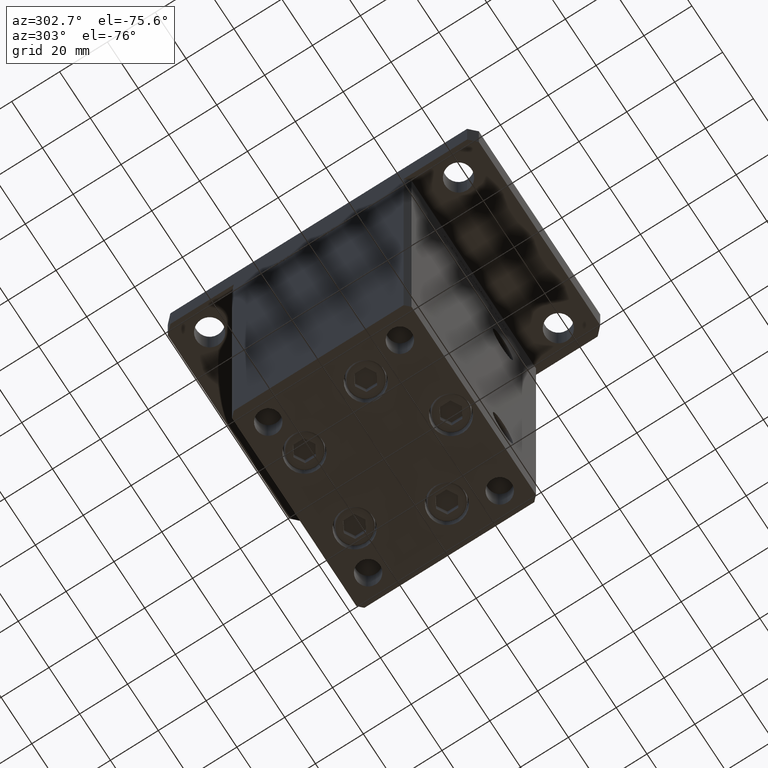
[diagram: clean part render]
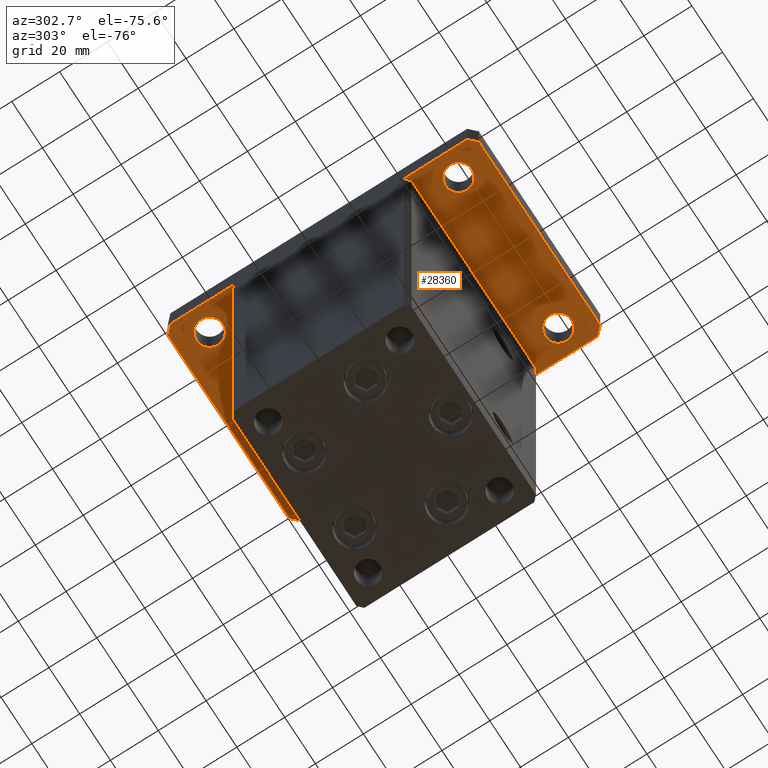
[diagram: same view with one face highlighted and labeled with its STEP entity id]
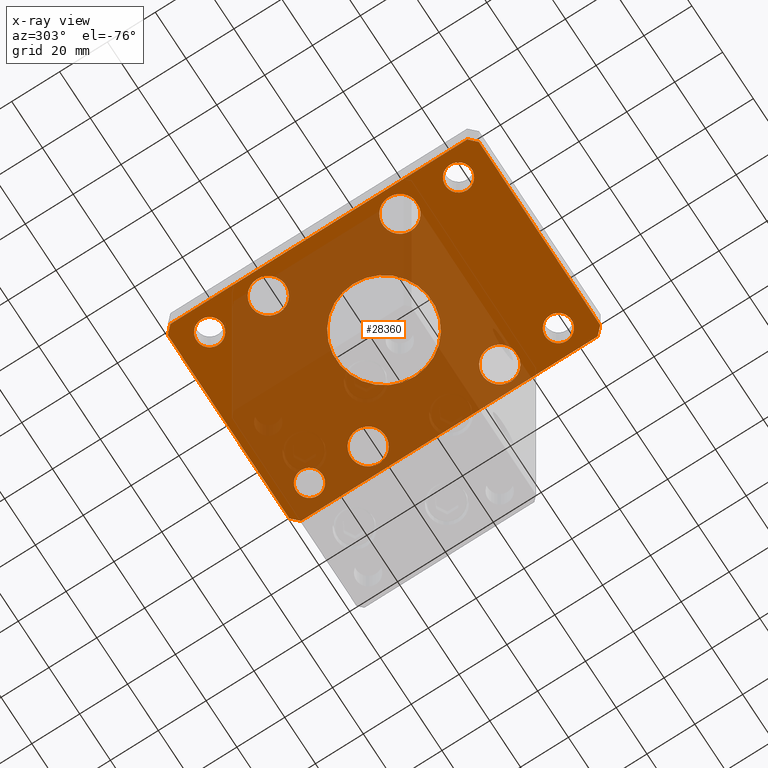
[diagram: x-ray of the same camera — body ghosted, the highlighted face saturated]
A machine part, auxiliary view. The second image highlights one B-rep face of the part: STEP entity #28360.
The next image is the same camera in x-ray: the body ghosted, the highlighted face saturated — about 61% of this face is hidden behind the body in this view.
In plain terms, the highlighted planar face has unit normal (0, 0, 1).
Its self-contained STEP definition (entity closure, byte-faithful):
#165 = EDGE_LOOP ( 'NONE', ( #21853, #30798 ) ) ;
#270 = CARTESIAN_POINT ( 'NONE',  ( 39.75000000000000000, -27.50000000000000000, 0.000000000000000000 ) ) ;
#429 = EDGE_CURVE ( 'NONE', #25460, #5634, #46263, .T. ) ;
#467 = CARTESIAN_POINT ( 'NONE',  ( 32.50000000000000000, -27.50000000000000000, 0.000000000000000000 ) ) ;
#526 = VERTEX_POINT ( 'NONE', #5602 ) ;
#562 = LINE ( 'NONE', #49399, #39294 ) ;
#572 = EDGE_CURVE ( 'NONE', #15214, #49573, #3826, .T. ) ;
#612 = EDGE_CURVE ( 'NONE', #18823, #40445, #2979, .T. ) ;
#733 = EDGE_CURVE ( 'NONE', #5634, #25460, #2085, .T. ) ;
#735 = DIRECTION ( 'NONE',  ( 0.000000000000000000, 0.000000000000000000, 1.000000000000000000 ) ) ;
#1325 = VECTOR ( 'NONE', #2848, 1000.000000000000000 ) ;
#1640 = AXIS2_PLACEMENT_3D ( 'NONE', #51189, #9947, #2096 ) ;
#1709 = ORIENTED_EDGE ( 'NONE', *, *, #21963, .T. ) ;
#2031 = FACE_BOUND ( 'NONE', #13577, .T. ) ;
#2085 = CIRCLE ( 'NONE', #29776, 5.499999999999998224 ) ;
#2096 = DIRECTION ( 'NONE',  ( 1.000000000000000000, 0.000000000000000000, 0.000000000000000000 ) ) ;
#2121 = VECTOR ( 'NONE', #28222, 1000.000000000000000 ) ;
#2164 = CIRCLE ( 'NONE', #27294, 20.00000000000000000 ) ;
#2212 = EDGE_CURVE ( 'NONE', #41423, #32702, #13368, .T. ) ;
#2848 = DIRECTION ( 'NONE',  ( 0.000000000000000000, 1.000000000000000000, 0.000000000000000000 ) ) ;
#2979 = CIRCLE ( 'NONE', #44591, 5.499999999999994671 ) ;
#3056 = ORIENTED_EDGE ( 'NONE', *, *, #42319, .F. ) ;
#3191 = CARTESIAN_POINT ( 'NONE',  ( -39.50000000000003553, 65.00000000000000000, 0.000000000000000000 ) ) ;
#3204 = DIRECTION ( 'NONE',  ( 0.000000000000000000, 0.000000000000000000, 1.000000000000000000 ) ) ;
#3275 = ORIENTED_EDGE ( 'NONE', *, *, #2212, .T. ) ;
#3456 = EDGE_LOOP ( 'NONE', ( #53625, #35612, #23006, #40290, #45476, #10619, #43315, #5190 ) ) ;
#3621 = CARTESIAN_POINT ( 'NONE',  ( 25.25000000000000000, -27.50000000000000000, 0.000000000000000000 ) ) ;
#3826 = CIRCLE ( 'NONE', #26360, 5.499999999999991118 ) ;
#3912 = EDGE_CURVE ( 'NONE', #45371, #46213, #15555, .T. ) ;
#4072 = CARTESIAN_POINT ( 'NONE',  ( -37.99999999999997868, -52.00000000000000711, 0.000000000000000000 ) ) ;
#5190 = ORIENTED_EDGE ( 'NONE', *, *, #32924, .F. ) ;
#5234 = EDGE_LOOP ( 'NONE', ( #14128, #12785 ) ) ;
#5277 = CARTESIAN_POINT ( 'NONE',  ( -20.00000000000000000, 0.000000000000000000, 0.000000000000000000 ) ) ;
#5330 = CARTESIAN_POINT ( 'NONE',  ( -32.49999999999997868, -52.00000000000000711, 0.000000000000000000 ) ) ;
#5379 = VERTEX_POINT ( 'NONE', #53196 ) ;
#5602 = CARTESIAN_POINT ( 'NONE',  ( 42.50000000000000000, 62.00000000000000711, 0.000000000000000000 ) ) ;
#5634 = VERTEX_POINT ( 'NONE', #25957 ) ;
#6268 = VERTEX_POINT ( 'NONE', #46653 ) ;
#6794 = CARTESIAN_POINT ( 'NONE',  ( 20.00000000000000000, 2.449293598294706513E-15, 0.000000000000000000 ) ) ;
#6916 = FACE_BOUND ( 'NONE', #165, .T. ) ;
#7143 = ORIENTED_EDGE ( 'NONE', *, *, #572, .T. ) ;
#7173 = CARTESIAN_POINT ( 'NONE',  ( -42.49999999999999289, -62.00000000000001421, 0.000000000000000000 ) ) ;
#7449 = CARTESIAN_POINT ( 'NONE',  ( 42.50000000000000000, -61.99999999999988631, 0.000000000000000000 ) ) ;
#7674 = ORIENTED_EDGE ( 'NONE', *, *, #34034, .T. ) ;
#7967 = DIRECTION ( 'NONE',  ( 0.000000000000000000, 0.000000000000000000, -1.000000000000000000 ) ) ;
#8515 = DIRECTION ( 'NONE',  ( 1.000000000000000000, 0.000000000000000000, 0.000000000000000000 ) ) ;
#8775 = CARTESIAN_POINT ( 'NONE',  ( 32.50000000000000000, 27.50000000000000000, 0.000000000000000000 ) ) ;
#9886 = AXIS2_PLACEMENT_3D ( 'NONE', #21076, #16736, #24109 ) ;
#9947 = DIRECTION ( 'NONE',  ( 0.000000000000000000, 0.000000000000000000, 1.000000000000000000 ) ) ;
#10154 = FACE_BOUND ( 'NONE', #28139, .T. ) ;
#10491 = EDGE_CURVE ( 'NONE', #32702, #41423, #24873, .T. ) ;
#10619 = ORIENTED_EDGE ( 'NONE', *, *, #37777, .F. ) ;
#10774 = ORIENTED_EDGE ( 'NONE', *, *, #25244, .T. ) ;
#10972 = FACE_OUTER_BOUND ( 'NONE', #3456, .T. ) ;
#10976 = EDGE_CURVE ( 'NONE', #46213, #6268, #52085, .T. ) ;
#11071 = DIRECTION ( 'NONE',  ( 1.000000000000000000, 0.000000000000000000, 0.000000000000000000 ) ) ;
#11612 = VERTEX_POINT ( 'NONE', #23302 ) ;
#11742 = VERTEX_POINT ( 'NONE', #33999 ) ;
#11796 = CIRCLE ( 'NONE', #35182, 7.249999999999999112 ) ;
#12002 = VERTEX_POINT ( 'NONE', #3621 ) ;
#12032 = AXIS2_PLACEMENT_3D ( 'NONE', #52918, #15746, #32269 ) ;
#12491 = AXIS2_PLACEMENT_3D ( 'NONE', #22661, #31055, #22942 ) ;
#12552 = DIRECTION ( 'NONE',  ( 0.000000000000000000, 0.000000000000000000, 1.000000000000000000 ) ) ;
#12759 = CARTESIAN_POINT ( 'NONE',  ( -39.75000000000000000, -27.50000000000000000, 0.000000000000000000 ) ) ;
#12785 = ORIENTED_EDGE ( 'NONE', *, *, #32878, .T. ) ;
#13368 = CIRCLE ( 'NONE', #50619, 7.249999999999999112 ) ;
#13577 = EDGE_LOOP ( 'NONE', ( #29716, #23418 ) ) ;
#13677 = VECTOR ( 'NONE', #36056, 1000.000000000000000 ) ;
#14105 = CARTESIAN_POINT ( 'NONE',  ( 26.99999999999998579, -52.00000000000000711, 0.000000000000000000 ) ) ;
#14128 = ORIENTED_EDGE ( 'NONE', *, *, #44697, .T. ) ;
#14457 = EDGE_LOOP ( 'NONE', ( #3056, #43032 ) ) ;
#14558 = DIRECTION ( 'NONE',  ( 1.000000000000000000, 0.000000000000000000, 0.000000000000000000 ) ) ;
#14674 = EDGE_LOOP ( 'NONE', ( #38011, #1709 ) ) ;
#15214 = VERTEX_POINT ( 'NONE', #27310 ) ;
#15364 = AXIS2_PLACEMENT_3D ( 'NONE', #49999, #37240, #33693 ) ;
#15472 = CIRCLE ( 'NONE', #12032, 5.499999999999994671 ) ;
#15555 = LINE ( 'NONE', #43793, #35109 ) ;
#15674 = CARTESIAN_POINT ( 'NONE',  ( -32.50000000000000000, 52.00000000000000000, 0.000000000000000000 ) ) ;
#15746 = DIRECTION ( 'NONE',  ( 0.000000000000000000, 0.000000000000000000, 1.000000000000000000 ) ) ;
#15806 = EDGE_CURVE ( 'NONE', #43168, #45165, #20720, .T. ) ;
#15980 = AXIS2_PLACEMENT_3D ( 'NONE', #15674, #3204, #11071 ) ;
#16066 = EDGE_LOOP ( 'NONE', ( #52654, #40349 ) ) ;
#16736 = DIRECTION ( 'NONE',  ( 0.000000000000000000, 0.000000000000000000, 1.000000000000000000 ) ) ;
#17439 = DIRECTION ( 'NONE',  ( 0.000000000000000000, 0.000000000000000000, 1.000000000000000000 ) ) ;
#17531 = DIRECTION ( 'NONE',  ( 0.000000000000000000, 0.000000000000000000, 1.000000000000000000 ) ) ;
#17656 = VECTOR ( 'NONE', #50097, 1000.000000000000000 ) ;
#17787 = CARTESIAN_POINT ( 'NONE',  ( 42.50000000000000000, 62.00000000000000711, 0.000000000000000000 ) ) ;
#17980 = EDGE_CURVE ( 'NONE', #11612, #29525, #15472, .T. ) ;
#18243 = CARTESIAN_POINT ( 'NONE',  ( 32.50000000000000000, 51.99999999999999289, 0.000000000000000000 ) ) ;
#18299 = FACE_BOUND ( 'NONE', #16066, .T. ) ;
#18823 = VERTEX_POINT ( 'NONE', #4072 ) ;
#19807 = EDGE_CURVE ( 'NONE', #25451, #26881, #24730, .T. ) ;
#20524 = VERTEX_POINT ( 'NONE', #27216 ) ;
#20698 = PLANE ( 'NONE',  #41731 ) ;
#20720 = CIRCLE ( 'NONE', #1640, 7.249999999999999112 ) ;
#21076 = CARTESIAN_POINT ( 'NONE',  ( 32.49999999999997868, -52.00000000000000711, 0.000000000000000000 ) ) ;
#21223 = DIRECTION ( 'NONE',  ( 1.000000000000000000, 0.000000000000000000, 0.000000000000000000 ) ) ;
#21224 = CIRCLE ( 'NONE', #42016, 7.249999999999999112 ) ;
#21853 = ORIENTED_EDGE ( 'NONE', *, *, #612, .T. ) ;
#21883 = DIRECTION ( 'NONE',  ( 0.000000000000000000, 0.000000000000000000, 1.000000000000000000 ) ) ;
#21963 = EDGE_CURVE ( 'NONE', #5379, #11742, #21224, .T. ) ;
#22041 = DIRECTION ( 'NONE',  ( -1.000000000000000000, 0.000000000000000000, 0.000000000000000000 ) ) ;
#22444 = VECTOR ( 'NONE', #41277, 1000.000000000000000 ) ;
#22645 = FACE_BOUND ( 'NONE', #14674, .T. ) ;
#22661 = CARTESIAN_POINT ( 'NONE',  ( -32.50000000000000711, 27.50000000000000000, 0.000000000000000000 ) ) ;
#22931 = AXIS2_PLACEMENT_3D ( 'NONE', #23207, #50860, #51410 ) ;
#22942 = DIRECTION ( 'NONE',  ( 1.000000000000000000, 0.000000000000000000, 0.000000000000000000 ) ) ;
#23006 = ORIENTED_EDGE ( 'NONE', *, *, #3912, .F. ) ;
#23207 = CARTESIAN_POINT ( 'NONE',  ( -32.49999999999997868, -52.00000000000000711, 0.000000000000000000 ) ) ;
#23218 = ORIENTED_EDGE ( 'NONE', *, *, #10491, .T. ) ;
#23302 = CARTESIAN_POINT ( 'NONE',  ( -38.00000000000000000, 52.00000000000000000, 0.000000000000000000 ) ) ;
#23418 = ORIENTED_EDGE ( 'NONE', *, *, #733, .T. ) ;
#23466 = LINE ( 'NONE', #7449, #1325 ) ;
#24066 = EDGE_LOOP ( 'NONE', ( #34800, #7674 ) ) ;
#24109 = DIRECTION ( 'NONE',  ( 1.000000000000000000, 0.000000000000000000, 0.000000000000000000 ) ) ;
#24161 = LINE ( 'NONE', #36866, #2121 ) ;
#24357 = DIRECTION ( 'NONE',  ( -0.7071067811865466846, -0.7071067811865483499, 0.000000000000000000 ) ) ;
#24730 = LINE ( 'NONE', #44836, #22444 ) ;
#24873 = CIRCLE ( 'NONE', #15364, 7.249999999999999112 ) ;
#25244 = EDGE_CURVE ( 'NONE', #49573, #15214, #42515, .T. ) ;
#25286 = DIRECTION ( 'NONE',  ( 0.000000000000000000, 0.000000000000000000, 1.000000000000000000 ) ) ;
#25311 = CARTESIAN_POINT ( 'NONE',  ( 0.000000000000000000, 0.000000000000000000, 0.000000000000000000 ) ) ;
#25451 = VERTEX_POINT ( 'NONE', #28274 ) ;
#25460 = VERTEX_POINT ( 'NONE', #14105 ) ;
#25957 = CARTESIAN_POINT ( 'NONE',  ( 37.99999999999997868, -52.00000000000000711, 0.000000000000000000 ) ) ;
#26360 = AXIS2_PLACEMENT_3D ( 'NONE', #30272, #17531, #46568 ) ;
#26497 = DIRECTION ( 'NONE',  ( 1.000000000000000000, 0.000000000000000000, 0.000000000000000000 ) ) ;
#26663 = DIRECTION ( 'NONE',  ( 0.000000000000000000, 0.000000000000000000, 1.000000000000000000 ) ) ;
#26725 = FACE_BOUND ( 'NONE', #5234, .T. ) ;
#26881 = VERTEX_POINT ( 'NONE', #3191 ) ;
#27216 = CARTESIAN_POINT ( 'NONE',  ( 39.50000000000001421, -64.99999999999988631, 0.000000000000000000 ) ) ;
#27294 = AXIS2_PLACEMENT_3D ( 'NONE', #25311, #7967, #41063 ) ;
#27310 = CARTESIAN_POINT ( 'NONE',  ( 37.99999999999999289, 51.99999999999999289, 0.000000000000000000 ) ) ;
#27536 = FACE_BOUND ( 'NONE', #35291, .T. ) ;
#28076 = CARTESIAN_POINT ( 'NONE',  ( -39.75000000000000711, 27.50000000000000000, 0.000000000000000000 ) ) ;
#28139 = EDGE_LOOP ( 'NONE', ( #3275, #23218 ) ) ;
#28222 = DIRECTION ( 'NONE',  ( 1.000000000000000000, 1.405345600791337191E-15, 0.000000000000000000 ) ) ;
#28274 = CARTESIAN_POINT ( 'NONE',  ( 39.50000000000002842, 65.00000000000002842, 0.000000000000000000 ) ) ;
#28360 = ADVANCED_FACE ( 'NONE', ( #35398, #10972, #6916, #27536, #18299, #10154, #26725, #22645, #39190, #2031 ), #20698, .F. ) ;
#28430 = CARTESIAN_POINT ( 'NONE',  ( -39.50000000000003553, 65.00000000000000000, 0.000000000000000000 ) ) ;
#29266 = DIRECTION ( 'NONE',  ( 1.000000000000000000, 0.000000000000000000, 0.000000000000000000 ) ) ;
#29525 = VERTEX_POINT ( 'NONE', #42137 ) ;
#29629 = CARTESIAN_POINT ( 'NONE',  ( -26.99999999999998579, -52.00000000000000711, 0.000000000000000000 ) ) ;
#29716 = ORIENTED_EDGE ( 'NONE', *, *, #429, .T. ) ;
#29776 = AXIS2_PLACEMENT_3D ( 'NONE', #43332, #31089, #14558 ) ;
#29780 = CIRCLE ( 'NONE', #37576, 7.249999999999999112 ) ;
#30272 = CARTESIAN_POINT ( 'NONE',  ( 32.50000000000000000, 51.99999999999999289, 0.000000000000000000 ) ) ;
#30798 = ORIENTED_EDGE ( 'NONE', *, *, #35972, .T. ) ;
#31055 = DIRECTION ( 'NONE',  ( 0.000000000000000000, 0.000000000000000000, 1.000000000000000000 ) ) ;
#31089 = DIRECTION ( 'NONE',  ( 0.000000000000000000, 0.000000000000000000, 1.000000000000000000 ) ) ;
#31277 = DIRECTION ( 'NONE',  ( 2.238352872228137677E-16, -1.000000000000000000, 0.000000000000000000 ) ) ;
#32111 = DIRECTION ( 'NONE',  ( 1.000000000000000000, 0.000000000000000000, -0.000000000000000000 ) ) ;
#32269 = DIRECTION ( 'NONE',  ( 1.000000000000000000, 0.000000000000000000, 0.000000000000000000 ) ) ;
#32702 = VERTEX_POINT ( 'NONE', #34564 ) ;
#32829 = DIRECTION ( 'NONE',  ( 0.7071067811865459074, 0.7071067811865491270, 0.000000000000000000 ) ) ;
#32878 = EDGE_CURVE ( 'NONE', #53506, #12002, #37535, .T. ) ;
#32893 = CARTESIAN_POINT ( 'NONE',  ( 0.000000000000000000, 0.000000000000000000, 0.000000000000000000 ) ) ;
#32924 = EDGE_CURVE ( 'NONE', #20524, #52036, #562, .T. ) ;
#33219 = CIRCLE ( 'NONE', #12491, 7.249999999999999112 ) ;
#33434 = DIRECTION ( 'NONE',  ( 0.000000000000000000, 0.000000000000000000, -1.000000000000000000 ) ) ;
#33693 = DIRECTION ( 'NONE',  ( 1.000000000000000000, 0.000000000000000000, 0.000000000000000000 ) ) ;
#33792 = DIRECTION ( 'NONE',  ( 1.000000000000000000, 0.000000000000000000, 0.000000000000000000 ) ) ;
#33999 = CARTESIAN_POINT ( 'NONE',  ( 25.25000000000000000, 27.50000000000000000, 0.000000000000000000 ) ) ;
#34034 = EDGE_CURVE ( 'NONE', #45165, #43168, #33219, .T. ) ;
#34225 = CIRCLE ( 'NONE', #41190, 20.00000000000000000 ) ;
#34304 = EDGE_CURVE ( 'NONE', #11742, #5379, #29780, .T. ) ;
#34317 = LINE ( 'NONE', #17787, #17656 ) ;
#34564 = CARTESIAN_POINT ( 'NONE',  ( -25.25000000000000000, -27.50000000000000000, 0.000000000000000000 ) ) ;
#34800 = ORIENTED_EDGE ( 'NONE', *, *, #15806, .T. ) ;
#35033 = CARTESIAN_POINT ( 'NONE',  ( -42.50000000000002132, 62.00000000000000711, 0.000000000000000000 ) ) ;
#35109 = VECTOR ( 'NONE', #31277, 1000.000000000000000 ) ;
#35182 = AXIS2_PLACEMENT_3D ( 'NONE', #467, #735, #33792 ) ;
#35291 = EDGE_LOOP ( 'NONE', ( #10774, #7143 ) ) ;
#35398 = FACE_BOUND ( 'NONE', #14457, .T. ) ;
#35612 = ORIENTED_EDGE ( 'NONE', *, *, #10976, .F. ) ;
#35669 = EDGE_CURVE ( 'NONE', #6268, #20524, #24161, .T. ) ;
#35911 = EDGE_CURVE ( 'NONE', #29525, #11612, #48069, .T. ) ;
#35972 = EDGE_CURVE ( 'NONE', #40445, #18823, #46296, .T. ) ;
#36056 = DIRECTION ( 'NONE',  ( 0.7071067811865483499, -0.7071067811865466846, 0.000000000000000000 ) ) ;
#36217 = VERTEX_POINT ( 'NONE', #6794 ) ;
#36866 = CARTESIAN_POINT ( 'NONE',  ( -39.50000000000000000, -65.00000000000000000, 0.000000000000000000 ) ) ;
#36962 = CARTESIAN_POINT ( 'NONE',  ( -32.50000000000000000, -27.50000000000000000, 0.000000000000000000 ) ) ;
#37142 = CARTESIAN_POINT ( 'NONE',  ( 32.50000000000000000, 27.50000000000000000, 0.000000000000000000 ) ) ;
#37240 = DIRECTION ( 'NONE',  ( 0.000000000000000000, 0.000000000000000000, 1.000000000000000000 ) ) ;
#37535 = CIRCLE ( 'NONE', #48831, 7.249999999999999112 ) ;
#37576 = AXIS2_PLACEMENT_3D ( 'NONE', #8775, #17439, #8515 ) ;
#37777 = EDGE_CURVE ( 'NONE', #526, #25451, #34317, .T. ) ;
#38011 = ORIENTED_EDGE ( 'NONE', *, *, #34304, .T. ) ;
#38929 = CARTESIAN_POINT ( 'NONE',  ( 32.50000000000000000, -27.50000000000000000, 0.000000000000000000 ) ) ;
#39190 = FACE_BOUND ( 'NONE', #24066, .T. ) ;
#39244 = EDGE_CURVE ( 'NONE', #26881, #45371, #49046, .T. ) ;
#39294 = VECTOR ( 'NONE', #32829, 1000.000000000000114 ) ;
#39988 = CARTESIAN_POINT ( 'NONE',  ( -25.25000000000000711, 27.50000000000000000, 0.000000000000000000 ) ) ;
#40137 = CARTESIAN_POINT ( 'NONE',  ( -42.49999999999999289, -62.00000000000001421, 0.000000000000000000 ) ) ;
#40224 = VERTEX_POINT ( 'NONE', #5277 ) ;
#40290 = ORIENTED_EDGE ( 'NONE', *, *, #39244, .F. ) ;
#40335 = EDGE_CURVE ( 'NONE', #36217, #40224, #2164, .T. ) ;
#40349 = ORIENTED_EDGE ( 'NONE', *, *, #35911, .T. ) ;
#40445 = VERTEX_POINT ( 'NONE', #29629 ) ;
#41031 = EDGE_CURVE ( 'NONE', #52036, #526, #23466, .T. ) ;
#41063 = DIRECTION ( 'NONE',  ( -1.000000000000000000, 0.000000000000000000, 0.000000000000000000 ) ) ;
#41190 = AXIS2_PLACEMENT_3D ( 'NONE', #50008, #33434, #22041 ) ;
#41277 = DIRECTION ( 'NONE',  ( -1.000000000000000000, -3.513364001978340512E-16, 0.000000000000000000 ) ) ;
#41423 = VERTEX_POINT ( 'NONE', #12759 ) ;
#41731 = AXIS2_PLACEMENT_3D ( 'NONE', #32893, #48943, #32111 ) ;
#42016 = AXIS2_PLACEMENT_3D ( 'NONE', #37142, #25286, #29266 ) ;
#42137 = CARTESIAN_POINT ( 'NONE',  ( -27.00000000000000711, 52.00000000000000000, 0.000000000000000000 ) ) ;
#42319 = EDGE_CURVE ( 'NONE', #40224, #36217, #34225, .T. ) ;
#42515 = CIRCLE ( 'NONE', #46000, 5.499999999999991118 ) ;
#43032 = ORIENTED_EDGE ( 'NONE', *, *, #40335, .F. ) ;
#43168 = VERTEX_POINT ( 'NONE', #28076 ) ;
#43287 = DIRECTION ( 'NONE',  ( 0.000000000000000000, 0.000000000000000000, 1.000000000000000000 ) ) ;
#43315 = ORIENTED_EDGE ( 'NONE', *, *, #41031, .F. ) ;
#43332 = CARTESIAN_POINT ( 'NONE',  ( 32.49999999999997868, -52.00000000000000711, 0.000000000000000000 ) ) ;
#43793 = CARTESIAN_POINT ( 'NONE',  ( -42.50000000000002132, 62.00000000000000711, 0.000000000000000000 ) ) ;
#44591 = AXIS2_PLACEMENT_3D ( 'NONE', #5330, #21883, #26497 ) ;
#44697 = EDGE_CURVE ( 'NONE', #12002, #53506, #11796, .T. ) ;
#44836 = CARTESIAN_POINT ( 'NONE',  ( 39.50000000000002842, 65.00000000000002842, 0.000000000000000000 ) ) ;
#45165 = VERTEX_POINT ( 'NONE', #39988 ) ;
#45371 = VERTEX_POINT ( 'NONE', #35033 ) ;
#45476 = ORIENTED_EDGE ( 'NONE', *, *, #19807, .F. ) ;
#46000 = AXIS2_PLACEMENT_3D ( 'NONE', #18243, #26663, #51347 ) ;
#46213 = VERTEX_POINT ( 'NONE', #7173 ) ;
#46263 = CIRCLE ( 'NONE', #9886, 5.499999999999998224 ) ;
#46296 = CIRCLE ( 'NONE', #22931, 5.499999999999994671 ) ;
#46568 = DIRECTION ( 'NONE',  ( 1.000000000000000000, 0.000000000000000000, 0.000000000000000000 ) ) ;
#46653 = CARTESIAN_POINT ( 'NONE',  ( -39.50000000000000000, -65.00000000000000000, 0.000000000000000000 ) ) ;
#47613 = DIRECTION ( 'NONE',  ( 1.000000000000000000, 0.000000000000000000, 0.000000000000000000 ) ) ;
#48069 = CIRCLE ( 'NONE', #15980, 5.499999999999994671 ) ;
#48771 = CARTESIAN_POINT ( 'NONE',  ( 42.50000000000000000, -61.99999999999988631, 0.000000000000000000 ) ) ;
#48831 = AXIS2_PLACEMENT_3D ( 'NONE', #38929, #43287, #47613 ) ;
#48943 = DIRECTION ( 'NONE',  ( 0.000000000000000000, 0.000000000000000000, 1.000000000000000000 ) ) ;
#49046 = LINE ( 'NONE', #28430, #49739 ) ;
#49399 = CARTESIAN_POINT ( 'NONE',  ( 39.50000000000001421, -64.99999999999988631, 0.000000000000000000 ) ) ;
#49573 = VERTEX_POINT ( 'NONE', #51892 ) ;
#49739 = VECTOR ( 'NONE', #24357, 1000.000000000000000 ) ;
#49999 = CARTESIAN_POINT ( 'NONE',  ( -32.50000000000000000, -27.50000000000000000, 0.000000000000000000 ) ) ;
#50008 = CARTESIAN_POINT ( 'NONE',  ( 0.000000000000000000, 0.000000000000000000, 0.000000000000000000 ) ) ;
#50097 = DIRECTION ( 'NONE',  ( -0.7071067811865417996, 0.7071067811865532349, 0.000000000000000000 ) ) ;
#50619 = AXIS2_PLACEMENT_3D ( 'NONE', #36962, #12552, #21223 ) ;
#50860 = DIRECTION ( 'NONE',  ( 0.000000000000000000, 0.000000000000000000, 1.000000000000000000 ) ) ;
#51189 = CARTESIAN_POINT ( 'NONE',  ( -32.50000000000000711, 27.50000000000000000, 0.000000000000000000 ) ) ;
#51347 = DIRECTION ( 'NONE',  ( 1.000000000000000000, 0.000000000000000000, 0.000000000000000000 ) ) ;
#51410 = DIRECTION ( 'NONE',  ( 1.000000000000000000, 0.000000000000000000, 0.000000000000000000 ) ) ;
#51892 = CARTESIAN_POINT ( 'NONE',  ( 27.00000000000001421, 51.99999999999999289, 0.000000000000000000 ) ) ;
#52036 = VERTEX_POINT ( 'NONE', #48771 ) ;
#52085 = LINE ( 'NONE', #40137, #13677 ) ;
#52654 = ORIENTED_EDGE ( 'NONE', *, *, #17980, .T. ) ;
#52918 = CARTESIAN_POINT ( 'NONE',  ( -32.50000000000000000, 52.00000000000000000, 0.000000000000000000 ) ) ;
#53196 = CARTESIAN_POINT ( 'NONE',  ( 39.75000000000000000, 27.50000000000000000, 0.000000000000000000 ) ) ;
#53506 = VERTEX_POINT ( 'NONE', #270 ) ;
#53625 = ORIENTED_EDGE ( 'NONE', *, *, #35669, .F. ) ;